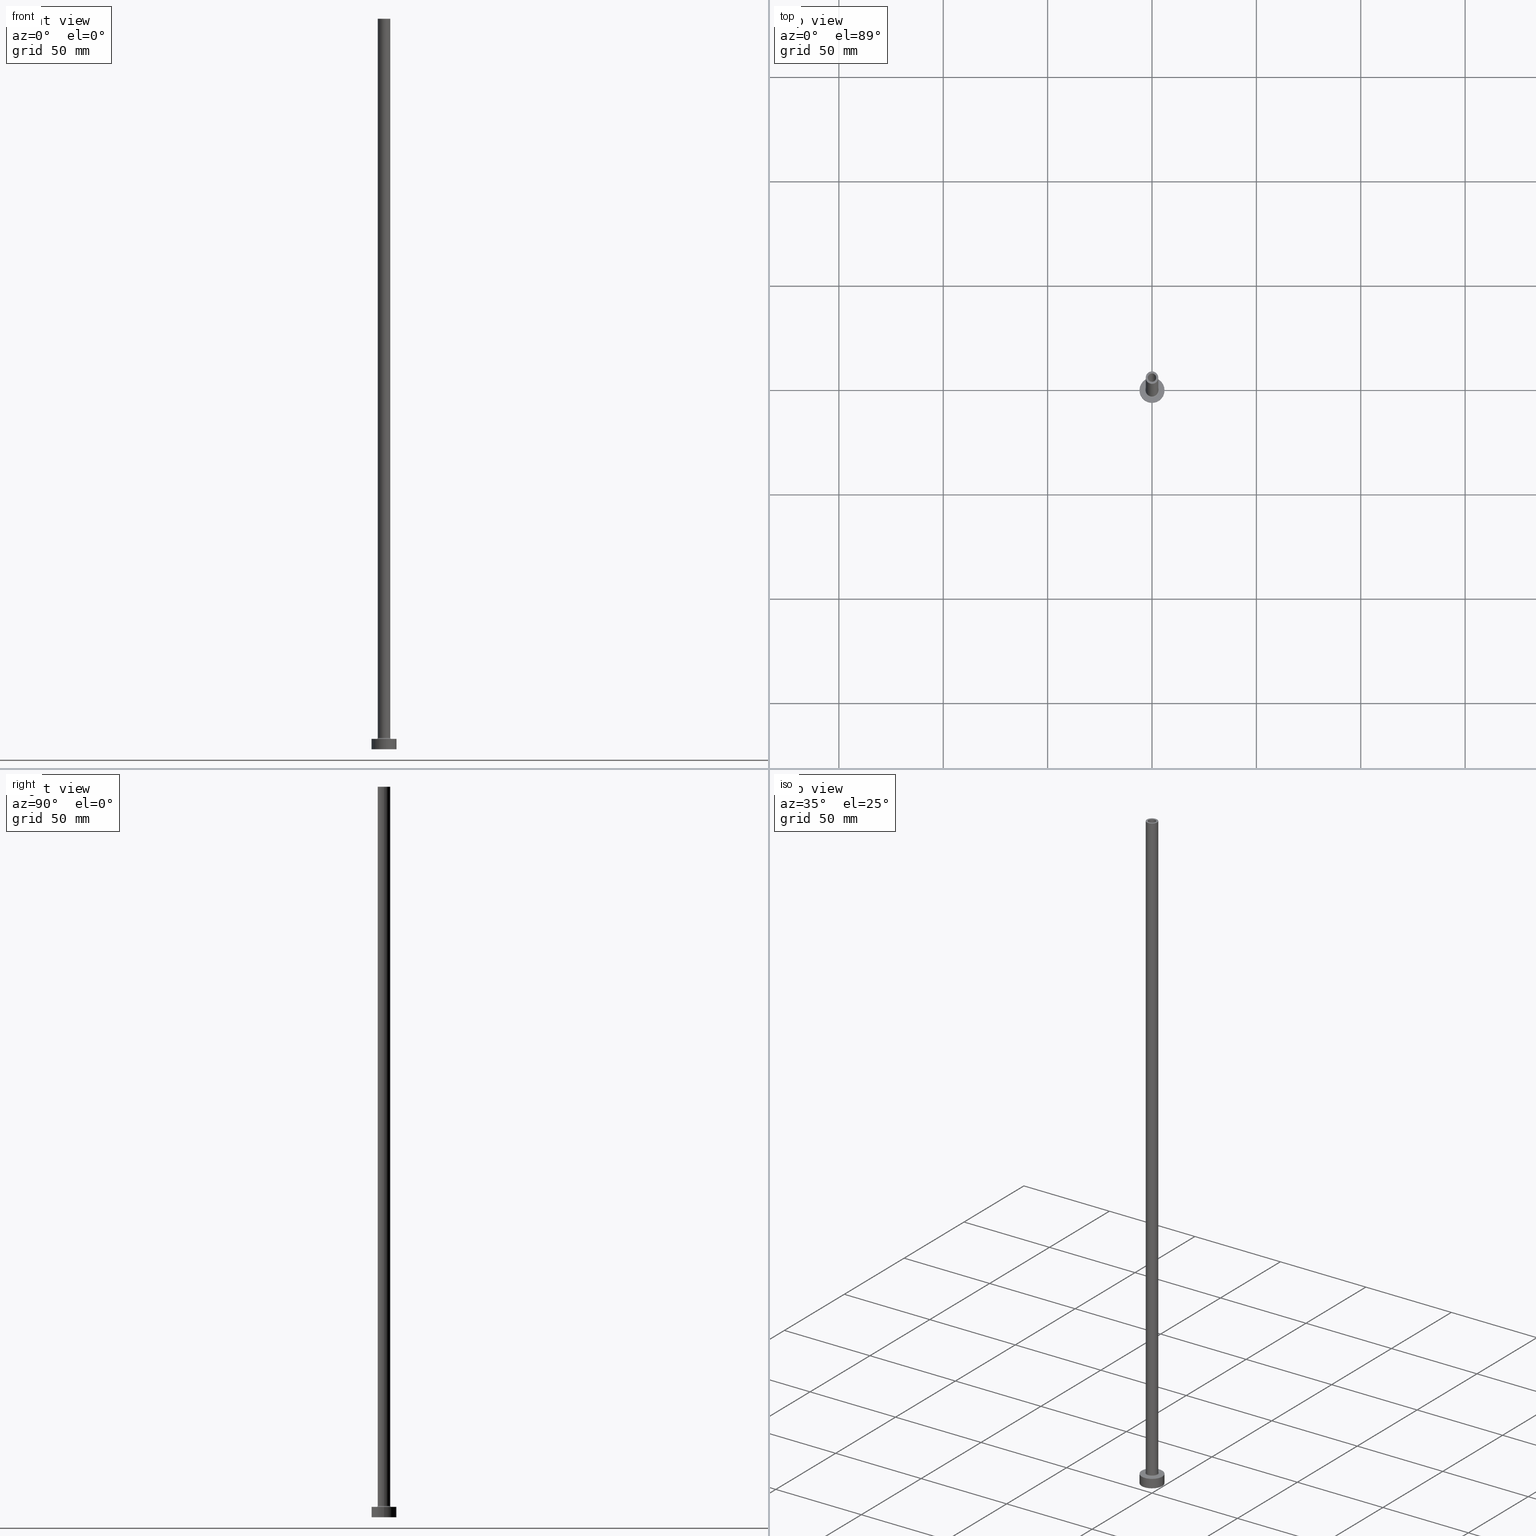
[diagram: canonical four-view strip — front | top / right | iso, engineering-drawing reading convention]
A machine part, canonical four-view strip (front | top / right | iso — engineering-drawing reading convention). The complete STEP part file that produces these views, byte-faithful:
ISO-10303-21;
HEADER;
FILE_DESCRIPTION (( 'STEP AP203' ),
    '1' );
FILE_NAME ('a9fa.STEP',
    '2023-02-13T17:44:10',
    ( '' ),
    ( '' ),
    'SwSTEP 2.0',
    'SolidWorks 2019',
    '' );
FILE_SCHEMA (( 'CONFIG_CONTROL_DESIGN' ));
ENDSEC;

DATA;
#1 = EDGE_LOOP ( 'NONE', ( #436, #14 ) ) ;
#2 = FACE_BOUND ( 'NONE', #57, .T. ) ;
#3 = EDGE_CURVE ( 'NONE', #217, #443, #50, .T. ) ;
#4 = CIRCLE ( 'NONE', #123, 2.000000000000000000 ) ;
#5 = CARTESIAN_POINT ( 'NONE',  ( 0.000000000000000000, 0.000000000000000000, 350.0000000000000000 ) ) ;
#6 = LOCAL_TIME ( 18, 44, 10.00000000000000000, #133 ) ;
#7 = ORIENTED_EDGE ( 'NONE', *, *, #93, .F. ) ;
#8 = CARTESIAN_POINT ( 'NONE',  ( -2.149999999999999911, 0.000000000000000000, 305.0000000000000000 ) ) ;
#9 = ORIENTED_EDGE ( 'NONE', *, *, #3, .T. ) ;
#10 = AXIS2_PLACEMENT_3D ( 'NONE', #308, #169, #26 ) ;
#11 = DATE_AND_TIME ( #194, #6 ) ;
#12 = CARTESIAN_POINT ( 'NONE',  ( 0.000000000000000000, 0.000000000000000000, 0.000000000000000000 ) ) ;
#13 = DIRECTION ( 'NONE',  ( 0.000000000000000000, 0.000000000000000000, -1.000000000000000000 ) ) ;
#14 = ORIENTED_EDGE ( 'NONE', *, *, #435, .F. ) ;
#15 = DIRECTION ( 'NONE',  ( 1.000000000000000000, 0.000000000000000000, 0.000000000000000000 ) ) ;
#16 = PERSON_AND_ORGANIZATION_ROLE ( 'creator' ) ;
#17 = CARTESIAN_POINT ( 'NONE',  ( 0.000000000000000000, 0.000000000000000000, 311.0811183182043465 ) ) ;
#18 = EDGE_CURVE ( 'NONE', #304, #287, #19, .T. ) ;
#19 = CIRCLE ( 'NONE', #143, 3.500000000000000444 ) ;
#20 = APPROVAL_ROLE ( '' ) ;
#21 = APPROVAL_PERSON_ORGANIZATION ( #410, #427, #20 ) ;
#22 = DIRECTION ( 'NONE',  ( 0.000000000000000000, 0.000000000000000000, -1.000000000000000000 ) ) ;
#23 = CC_DESIGN_PERSON_AND_ORGANIZATION_ASSIGNMENT ( #236, #417, ( #84 ) ) ;
#24 = SHAPE_DEFINITION_REPRESENTATION ( #141, #85 ) ;
#25 = FACE_OUTER_BOUND ( 'NONE', #297, .T. ) ;
#26 = DIRECTION ( 'NONE',  ( -1.000000000000000000, 0.000000000000000000, 0.000000000000000000 ) ) ;
#27 = AXIS2_PLACEMENT_3D ( 'NONE', #263, #306, #272 ) ;
#28 = CC_DESIGN_PERSON_AND_ORGANIZATION_ASSIGNMENT ( #157, #16, ( #360 ) ) ;
#29 = CIRCLE ( 'NONE', #199, 2.149999999999999911 ) ;
#30 = CC_DESIGN_SECURITY_CLASSIFICATION ( #348, ( #84 ) ) ;
#31 = DIRECTION ( 'NONE',  ( -0.000000000000000000, -0.000000000000000000, -1.000000000000000000 ) ) ;
#32 = APPROVAL_STATUS ( 'not_yet_approved' ) ;
#33 = DIRECTION ( 'NONE',  ( 1.000000000000000000, 0.000000000000000000, -0.000000000000000000 ) ) ;
#34 = ORIENTED_EDGE ( 'NONE', *, *, #391, .T. ) ;
#35 = APPROVAL_ROLE ( '' ) ;
#36 = CARTESIAN_POINT ( 'NONE',  ( 0.000000000000000000, 0.000000000000000000, 350.0000000000000000 ) ) ;
#37 = EDGE_CURVE ( 'NONE', #300, #426, #274, .T. ) ;
#38 = VERTEX_POINT ( 'NONE', #222 ) ;
#39 = APPLICATION_CONTEXT ( 'configuration controlled 3d designs of mechanical parts and assemblies' ) ;
#40 = VECTOR ( 'NONE', #418, 1000.000000000000000 ) ;
#41 = FACE_OUTER_BOUND ( 'NONE', #292, .T. ) ;
#42 = DIRECTION ( 'NONE',  ( 0.000000000000000000, 0.000000000000000000, -1.000000000000000000 ) ) ;
#43 = DIRECTION ( 'NONE',  ( 0.000000000000000000, 0.000000000000000000, 1.000000000000000000 ) ) ;
#44 = ORIENTED_EDGE ( 'NONE', *, *, #51, .T. ) ;
#45 = ORIENTED_EDGE ( 'NONE', *, *, #18, .F. ) ;
#46 = DIRECTION ( 'NONE',  ( 1.000000000000000000, 0.000000000000000000, 0.000000000000000000 ) ) ;
#47 = AXIS2_PLACEMENT_3D ( 'NONE', #424, #43, #207 ) ;
#48 = CC_DESIGN_APPROVAL ( #75, ( #348 ) ) ;
#49 = VERTEX_POINT ( 'NONE', #88 ) ;
#50 = LINE ( 'NONE', #401, #154 ) ;
#51 = EDGE_CURVE ( 'NONE', #216, #425, #120, .T. ) ;
#52 = CARTESIAN_POINT ( 'NONE',  ( 2.149999999999999911, 2.632990618166809235E-16, 311.0811183182043465 ) ) ;
#53 = VERTEX_POINT ( 'NONE', #185 ) ;
#54 = APPROVAL_ROLE ( '' ) ;
#55 = AXIS2_PLACEMENT_3D ( 'NONE', #442, #371, #187 ) ;
#56 = ORIENTED_EDGE ( 'NONE', *, *, #246, .F. ) ;
#57 = EDGE_LOOP ( 'NONE', ( #61, #437 ) ) ;
#58 = APPROVAL_STATUS ( 'not_yet_approved' ) ;
#59 = EDGE_CURVE ( 'NONE', #38, #287, #415, .T. ) ;
#60 = LINE ( 'NONE', #433, #64 ) ;
#61 = ORIENTED_EDGE ( 'NONE', *, *, #405, .F. ) ;
#62 = CYLINDRICAL_SURFACE ( 'NONE', #409, 2.149999999999999911 ) ;
#63 = DATE_AND_TIME ( #380, #368 ) ;
#64 = VECTOR ( 'NONE', #403, 1000.000000000000000 ) ;
#65 = EDGE_CURVE ( 'NONE', #233, #426, #125, .T. ) ;
#66 = UNCERTAINTY_MEASURE_WITH_UNIT (LENGTH_MEASURE( 1.000000000000000082E-05 ), #458, 'distance_accuracy_value', 'NONE');
#67 = DIRECTION ( 'NONE',  ( -0.000000000000000000, -0.000000000000000000, -1.000000000000000000 ) ) ;
#68 = DATE_TIME_ROLE ( 'classification_date' ) ;
#69 = AXIS2_PLACEMENT_3D ( 'NONE', #249, #394, #327 ) ;
#70 = LOCAL_TIME ( 18, 44, 10.00000000000000000, #453 ) ;
#71 = CARTESIAN_POINT ( 'NONE',  ( 0.000000000000000000, 0.000000000000000000, 5.000000000000000000 ) ) ;
#72 = DIRECTION ( 'NONE',  ( 1.000000000000000000, 0.000000000000000000, 0.000000000000000000 ) ) ;
#73 = CARTESIAN_POINT ( 'NONE',  ( 0.000000000000000000, 0.000000000000000000, 350.0000000000000000 ) ) ;
#74 = FACE_OUTER_BOUND ( 'NONE', #248, .T. ) ;
#75 = APPROVAL ( #32, 'NEUR�EN�' ) ;
#76 = FACE_OUTER_BOUND ( 'NONE', #228, .T. ) ;
#77 = AXIS2_PLACEMENT_3D ( 'NONE', #339, #334, #372 ) ;
#78 = CIRCLE ( 'NONE', #337, 6.000000000000000888 ) ;
#79 = DIRECTION ( 'NONE',  ( -1.000000000000000000, 0.000000000000000000, 0.000000000000000000 ) ) ;
#80 = VERTEX_POINT ( 'NONE', #336 ) ;
#81 = DIRECTION ( 'NONE',  ( 0.000000000000000000, 0.000000000000000000, 1.000000000000000000 ) ) ;
#82 = ORIENTED_EDGE ( 'NONE', *, *, #104, .T. ) ;
#83 = ORIENTED_EDGE ( 'NONE', *, *, #135, .T. ) ;
#84 = PRODUCT_DEFINITION_FORMATION_WITH_SPECIFIED_SOURCE ( 'LIBOVOLN�', '', #457, .NOT_KNOWN. ) ;
#85 = ADVANCED_BREP_SHAPE_REPRESENTATION ( 'a9fa', ( #283, #423 ), #105 ) ;
#86 = CYLINDRICAL_SURFACE ( 'NONE', #98, 3.000000000000000444 ) ;
#87 = APPLICATION_CONTEXT ( 'configuration controlled 3d designs of mechanical parts and assemblies' ) ;
#88 = CARTESIAN_POINT ( 'NONE',  ( -6.000000000000000888, 0.000000000000000000, 0.000000000000000000 ) ) ;
#89 = LINE ( 'NONE', #373, #295 ) ;
#90 = ORIENTED_EDGE ( 'NONE', *, *, #435, .T. ) ;
#91 = CIRCLE ( 'NONE', #317, 2.000000000000000000 ) ;
#92 = DIRECTION ( 'NONE',  ( 0.000000000000000000, 0.000000000000000000, -1.000000000000000000 ) ) ;
#93 = EDGE_CURVE ( 'NONE', #396, #216, #315, .T. ) ;
#94 = CARTESIAN_POINT ( 'NONE',  ( 3.500000000000000444, 0.000000000000000000, 5.500000000000005329 ) ) ;
#95 = ORIENTED_EDGE ( 'NONE', *, *, #65, .T. ) ;
#96 = ADVANCED_FACE ( 'NONE', ( #25 ), #115, .F. ) ;
#97 = DIRECTION ( 'NONE',  ( -1.000000000000000000, 0.000000000000000000, 0.000000000000000000 ) ) ;
#98 = AXIS2_PLACEMENT_3D ( 'NONE', #36, #31, #318 ) ;
#99 = CARTESIAN_POINT ( 'NONE',  ( 0.000000000000000000, 0.000000000000000000, 5.500000000000005329 ) ) ;
#100 = PRODUCT_RELATED_PRODUCT_CATEGORY ( 'detail', '', ( #457 ) ) ;
#101 = CARTESIAN_POINT ( 'NONE',  ( -6.000000000000000888, 0.000000000000000000, 5.000000000000000000 ) ) ;
#102 = CARTESIAN_POINT ( 'NONE',  ( -2.000000000000000000, 0.000000000000000000, 305.0000000000000000 ) ) ;
#103 = DIRECTION ( 'NONE',  ( 0.000000000000000000, 0.000000000000000000, 1.000000000000000000 ) ) ;
#104 = EDGE_CURVE ( 'NONE', #38, #261, #153, .T. ) ;
#105 =( GEOMETRIC_REPRESENTATION_CONTEXT ( 3 ) GLOBAL_UNCERTAINTY_ASSIGNED_CONTEXT ( ( #66 ) ) GLOBAL_UNIT_ASSIGNED_CONTEXT ( ( #458, #218, #298 ) ) REPRESENTATION_CONTEXT ( 'NONE', 'WORKASPACE' ) );
#106 = CARTESIAN_POINT ( 'NONE',  ( 2.149999999999999911, 2.632990618166809235E-16, 0.000000000000000000 ) ) ;
#107 = PLANE ( 'NONE',  #47 ) ;
#108 = ORIENTED_EDGE ( 'NONE', *, *, #121, .F. ) ;
#109 = DIRECTION ( 'NONE',  ( 0.000000000000000000, 0.000000000000000000, 1.000000000000000000 ) ) ;
#110 = ORIENTED_EDGE ( 'NONE', *, *, #93, .T. ) ;
#111 = EDGE_LOOP ( 'NONE', ( #149, #7, #404, #250 ) ) ;
#112 = APPROVAL ( #58, 'NEUR�EN�' ) ;
#113 = DIRECTION ( 'NONE',  ( 1.000000000000000000, 0.000000000000000000, 0.000000000000000000 ) ) ;
#114 = ORIENTED_EDGE ( 'NONE', *, *, #129, .T. ) ;
#115 = TOROIDAL_SURFACE ( 'NONE', #294, 3.500000000000000444, 0.5000000000000000000 ) ;
#116 = AXIS2_PLACEMENT_3D ( 'NONE', #71, #299, #180 ) ;
#117 = DIRECTION ( 'NONE',  ( 1.000000000000000000, 0.000000000000000000, 0.000000000000000000 ) ) ;
#118 = FACE_OUTER_BOUND ( 'NONE', #255, .T. ) ;
#119 = DIRECTION ( 'NONE',  ( 0.000000000000000000, 0.000000000000000000, -1.000000000000000000 ) ) ;
#120 = LINE ( 'NONE', #370, #430 ) ;
#121 = EDGE_CURVE ( 'NONE', #216, #396, #166, .T. ) ;
#122 = DIRECTION ( 'NONE',  ( 1.000000000000000000, 0.000000000000000000, 0.000000000000000000 ) ) ;
#123 = AXIS2_PLACEMENT_3D ( 'NONE', #178, #109, #215 ) ;
#124 = CARTESIAN_POINT ( 'NONE',  ( 0.000000000000000000, 0.000000000000000000, 0.000000000000000000 ) ) ;
#125 = LINE ( 'NONE', #52, #358 ) ;
#126 = ORIENTED_EDGE ( 'NONE', *, *, #399, .T. ) ;
#127 = CYLINDRICAL_SURFACE ( 'NONE', #55, 6.000000000000000888 ) ;
#128 = DIRECTION ( 'NONE',  ( -0.000000000000000000, -0.000000000000000000, -1.000000000000000000 ) ) ;
#129 = EDGE_CURVE ( 'NONE', #261, #38, #381, .T. ) ;
#130 = DIRECTION ( 'NONE',  ( -1.000000000000000000, 0.000000000000000000, 0.000000000000000000 ) ) ;
#131 = CC_DESIGN_APPROVAL ( #427, ( #84 ) ) ;
#132 = DIRECTION ( 'NONE',  ( 0.000000000000000000, 0.000000000000000000, 1.000000000000000000 ) ) ;
#133 = COORDINATED_UNIVERSAL_TIME_OFFSET ( 1, 0, .AHEAD. ) ;
#134 = LINE ( 'NONE', #101, #40 ) ;
#135 = EDGE_CURVE ( 'NONE', #80, #217, #4, .T. ) ;
#136 = APPROVAL_PERSON_ORGANIZATION ( #346, #112, #54 ) ;
#137 = CARTESIAN_POINT ( 'NONE',  ( -3.500000000000000444, 4.286263797015737088E-16, 5.000000000000002665 ) ) ;
#138 = CALENDAR_DATE ( 2023, 13, 2 ) ;
#139 = DIRECTION ( 'NONE',  ( 1.000000000000000000, 0.000000000000000000, 0.000000000000000000 ) ) ;
#140 = ADVANCED_FACE ( 'NONE', ( #359, #76 ), #364, .T. ) ;
#141 = PRODUCT_DEFINITION_SHAPE ( 'NONE', 'NONE',  #360 ) ;
#142 = PERSON_AND_ORGANIZATION ( #356, #382 ) ;
#143 = AXIS2_PLACEMENT_3D ( 'NONE', #342, #128, #191 ) ;
#144 = APPROVAL_PERSON_ORGANIZATION ( #239, #75, #35 ) ;
#145 = ORIENTED_EDGE ( 'NONE', *, *, #189, .T. ) ;
#146 = ORIENTED_EDGE ( 'NONE', *, *, #121, .T. ) ;
#147 = ADVANCED_FACE ( 'NONE', ( #2, #41 ), #107, .T. ) ;
#148 = AXIS2_PLACEMENT_3D ( 'NONE', #208, #355, #284 ) ;
#149 = ORIENTED_EDGE ( 'NONE', *, *, #51, .F. ) ;
#150 = ADVANCED_FACE ( 'NONE', ( #244 ), #177, .F. ) ;
#151 = CARTESIAN_POINT ( 'NONE',  ( -6.000000000000000888, 0.000000000000000000, 5.000000000000000000 ) ) ;
#152 = ORIENTED_EDGE ( 'NONE', *, *, #374, .F. ) ;
#153 = CIRCLE ( 'NONE', #265, 3.000000000000000444 ) ;
#154 = VECTOR ( 'NONE', #92, 1000.000000000000000 ) ;
#155 = CIRCLE ( 'NONE', #432, 6.000000000000000888 ) ;
#156 = DIRECTION ( 'NONE',  ( 1.000000000000000000, 0.000000000000000000, 0.000000000000000000 ) ) ;
#157 = PERSON_AND_ORGANIZATION ( #356, #382 ) ;
#158 = ADVANCED_FACE ( 'NONE', ( #74 ), #362, .F. ) ;
#159 = FACE_OUTER_BOUND ( 'NONE', #363, .T. ) ;
#160 = DIRECTION ( 'NONE',  ( -0.000000000000000000, -0.000000000000000000, -1.000000000000000000 ) ) ;
#161 = ORIENTED_EDGE ( 'NONE', *, *, #374, .T. ) ;
#162 = CC_DESIGN_PERSON_AND_ORGANIZATION_ASSIGNMENT ( #455, #282, ( #348 ) ) ;
#163 = CARTESIAN_POINT ( 'NONE',  ( 0.000000000000000000, 0.000000000000000000, 305.0000000000000000 ) ) ;
#164 = COORDINATED_UNIVERSAL_TIME_OFFSET ( 1, 0, .AHEAD. ) ;
#165 = CARTESIAN_POINT ( 'NONE',  ( 0.000000000000000000, 0.000000000000000000, 311.0811183182043465 ) ) ;
#166 = CIRCLE ( 'NONE', #210, 6.000000000000000888 ) ;
#167 = CIRCLE ( 'NONE', #181, 0.5000000000000004441 ) ;
#168 = LINE ( 'NONE', #314, #226 ) ;
#169 = DIRECTION ( 'NONE',  ( -0.000000000000000000, -0.000000000000000000, -1.000000000000000000 ) ) ;
#170 = AXIS2_PLACEMENT_3D ( 'NONE', #73, #366, #258 ) ;
#171 = DATE_AND_TIME ( #138, #70 ) ;
#172 = DIRECTION ( 'NONE',  ( 0.000000000000000000, 0.000000000000000000, 1.000000000000000000 ) ) ;
#173 = DIRECTION ( 'NONE',  ( 0.000000000000000000, 0.000000000000000000, 1.000000000000000000 ) ) ;
#174 = ADVANCED_FACE ( 'NONE', ( #434 ), #127, .T. ) ;
#175 = ORIENTED_EDGE ( 'NONE', *, *, #405, .T. ) ;
#176 = CIRCLE ( 'NONE', #235, 2.149999999999999911 ) ;
#177 = CYLINDRICAL_SURFACE ( 'NONE', #421, 2.000000000000000000 ) ;
#178 = CARTESIAN_POINT ( 'NONE',  ( 0.000000000000000000, 0.000000000000000000, 350.0000000000000000 ) ) ;
#179 = ORIENTED_EDGE ( 'NONE', *, *, #341, .F. ) ;
#180 = DIRECTION ( 'NONE',  ( 1.000000000000000000, 0.000000000000000000, 0.000000000000000000 ) ) ;
#181 = AXIS2_PLACEMENT_3D ( 'NONE', #94, #229, #378 ) ;
#182 = CARTESIAN_POINT ( 'NONE',  ( 0.000000000000000000, 0.000000000000000000, 0.000000000000000000 ) ) ;
#183 = CARTESIAN_POINT ( 'NONE',  ( 0.000000000000000000, 0.000000000000000000, 305.0000000000000000 ) ) ;
#184 = DIRECTION ( 'NONE',  ( 1.000000000000000000, 0.000000000000000000, 0.000000000000000000 ) ) ;
#185 = CARTESIAN_POINT ( 'NONE',  ( 2.000000000000000000, 2.449293598294705921E-16, 305.0000000000000000 ) ) ;
#186 = EDGE_LOOP ( 'NONE', ( #179, #460, #407, #82 ) ) ;
#187 = DIRECTION ( 'NONE',  ( -1.000000000000000000, 0.000000000000000000, 0.000000000000000000 ) ) ;
#188 = ORIENTED_EDGE ( 'NONE', *, *, #198, .F. ) ;
#189 = EDGE_CURVE ( 'NONE', #390, #300, #89, .T. ) ;
#190 = LOCAL_TIME ( 18, 44, 10.00000000000000000, #203 ) ;
#191 = DIRECTION ( 'NONE',  ( 1.000000000000000000, 0.000000000000000000, 0.000000000000000000 ) ) ;
#192 = EDGE_LOOP ( 'NONE', ( #56, #291, #114, #367 ) ) ;
#193 = ORIENTED_EDGE ( 'NONE', *, *, #293, .T. ) ;
#194 = CALENDAR_DATE ( 2023, 13, 2 ) ;
#195 = DIRECTION ( 'NONE',  ( 1.000000000000000000, 0.000000000000000000, 0.000000000000000000 ) ) ;
#196 = DIRECTION ( 'NONE',  ( 1.000000000000000000, 0.000000000000000000, 0.000000000000000000 ) ) ;
#197 = CYLINDRICAL_SURFACE ( 'NONE', #213, 3.000000000000000444 ) ;
#198 = EDGE_CURVE ( 'NONE', #49, #425, #155, .T. ) ;
#199 = AXIS2_PLACEMENT_3D ( 'NONE', #183, #319, #332 ) ;
#200 = SECURITY_CLASSIFICATION_LEVEL ( 'unclassified' ) ;
#201 = CARTESIAN_POINT ( 'NONE',  ( 3.500000000000000444, 0.000000000000000000, 5.000000000000002665 ) ) ;
#202 = DESIGN_CONTEXT ( 'detailed design', #87, 'design' ) ;
#203 = COORDINATED_UNIVERSAL_TIME_OFFSET ( 1, 0, .AHEAD. ) ;
#204 = EDGE_CURVE ( 'NONE', #426, #300, #459, .T. ) ;
#205 = DIRECTION ( 'NONE',  ( -0.000000000000000000, -0.000000000000000000, -1.000000000000000000 ) ) ;
#206 = DIRECTION ( 'NONE',  ( 0.000000000000000000, 0.000000000000000000, 1.000000000000000000 ) ) ;
#207 = DIRECTION ( 'NONE',  ( 1.000000000000000000, 0.000000000000000000, -0.000000000000000000 ) ) ;
#208 = CARTESIAN_POINT ( 'NONE',  ( 0.000000000000000000, 0.000000000000000000, 305.0000000000000000 ) ) ;
#209 = ORIENTED_EDGE ( 'NONE', *, *, #129, .F. ) ;
#210 = AXIS2_PLACEMENT_3D ( 'NONE', #431, #81, #357 ) ;
#211 = ORIENTED_EDGE ( 'NONE', *, *, #333, .F. ) ;
#212 = CIRCLE ( 'NONE', #329, 2.000000000000000000 ) ;
#213 = AXIS2_PLACEMENT_3D ( 'NONE', #232, #205, #449 ) ;
#214 = ORIENTED_EDGE ( 'NONE', *, *, #37, .T. ) ;
#215 = DIRECTION ( 'NONE',  ( 1.000000000000000000, 0.000000000000000000, 0.000000000000000000 ) ) ;
#216 = VERTEX_POINT ( 'NONE', #400 ) ;
#217 = VERTEX_POINT ( 'NONE', #338 ) ;
#218 =( NAMED_UNIT ( * ) PLANE_ANGLE_UNIT ( ) SI_UNIT ( $, .RADIAN. ) );
#219 = EDGE_LOOP ( 'NONE', ( #440, #267 ) ) ;
#220 = ORIENTED_EDGE ( 'NONE', *, *, #399, .F. ) ;
#221 = VECTOR ( 'NONE', #456, 1000.000000000000000 ) ;
#222 = CARTESIAN_POINT ( 'NONE',  ( -3.000000000000000444, 0.000000000000000000, 5.500000000000005329 ) ) ;
#223 = APPLICATION_PROTOCOL_DEFINITION ( 'international standard', 'config_control_design', 1994, #87 ) ;
#224 = ORIENTED_EDGE ( 'NONE', *, *, #3, .F. ) ;
#225 = ORIENTED_EDGE ( 'NONE', *, *, #391, .F. ) ;
#226 = VECTOR ( 'NONE', #67, 1000.000000000000000 ) ;
#227 = CYLINDRICAL_SURFACE ( 'NONE', #10, 6.000000000000000888 ) ;
#228 = EDGE_LOOP ( 'NONE', ( #110, #146 ) ) ;
#229 = DIRECTION ( 'NONE',  ( 0.000000000000000000, -1.000000000000000000, 0.000000000000000000 ) ) ;
#230 = CALENDAR_DATE ( 2023, 13, 2 ) ;
#231 = ADVANCED_FACE ( 'NONE', ( #159 ), #227, .T. ) ;
#232 = CARTESIAN_POINT ( 'NONE',  ( 0.000000000000000000, 0.000000000000000000, 350.0000000000000000 ) ) ;
#233 = VERTEX_POINT ( 'NONE', #446 ) ;
#234 = DIRECTION ( 'NONE',  ( 0.000000000000000000, 0.000000000000000000, 1.000000000000000000 ) ) ;
#235 = AXIS2_PLACEMENT_3D ( 'NONE', #454, #206, #139 ) ;
#236 = PERSON_AND_ORGANIZATION ( #356, #382 ) ;
#237 = CARTESIAN_POINT ( 'NONE',  ( 0.000000000000000000, 0.000000000000000000, 350.0000000000000000 ) ) ;
#238 = DIRECTION ( 'NONE',  ( 1.000000000000000000, 0.000000000000000000, 0.000000000000000000 ) ) ;
#239 = PERSON_AND_ORGANIZATION ( #356, #382 ) ;
#240 = CARTESIAN_POINT ( 'NONE',  ( 3.000000000000000444, 3.673940397442060361E-16, 350.0000000000000000 ) ) ;
#241 = CIRCLE ( 'NONE', #416, 3.000000000000000444 ) ;
#242 = CALENDAR_DATE ( 2023, 13, 2 ) ;
#243 = PLANE ( 'NONE',  #148 ) ;
#244 = FACE_OUTER_BOUND ( 'NONE', #345, .T. ) ;
#245 = ORIENTED_EDGE ( 'NONE', *, *, #369, .T. ) ;
#246 = EDGE_CURVE ( 'NONE', #445, #325, #251, .T. ) ;
#247 = CARTESIAN_POINT ( 'NONE',  ( 0.000000000000000000, 0.000000000000000000, 5.500000000000005329 ) ) ;
#248 = EDGE_LOOP ( 'NONE', ( #225, #83, #9, #397 ) ) ;
#249 = CARTESIAN_POINT ( 'NONE',  ( 0.000000000000000000, 0.000000000000000000, 5.000000000000000000 ) ) ;
#250 = ORIENTED_EDGE ( 'NONE', *, *, #198, .T. ) ;
#251 = CIRCLE ( 'NONE', #286, 3.000000000000000444 ) ;
#252 = EDGE_CURVE ( 'NONE', #396, #49, #134, .T. ) ;
#253 = PLANE ( 'NONE',  #361 ) ;
#254 = DIRECTION ( 'NONE',  ( 1.000000000000000000, 0.000000000000000000, 0.000000000000000000 ) ) ;
#255 = EDGE_LOOP ( 'NONE', ( #188, #220 ) ) ;
#256 = EDGE_LOOP ( 'NONE', ( #161, #193 ) ) ;
#257 = DIRECTION ( 'NONE',  ( -0.000000000000000000, -0.000000000000000000, -1.000000000000000000 ) ) ;
#258 = DIRECTION ( 'NONE',  ( 1.000000000000000000, 0.000000000000000000, 0.000000000000000000 ) ) ;
#259 = AXIS2_PLACEMENT_3D ( 'NONE', #99, #269, #238 ) ;
#260 = ORIENTED_EDGE ( 'NONE', *, *, #333, .T. ) ;
#261 = VERTEX_POINT ( 'NONE', #384 ) ;
#262 = CC_DESIGN_DATE_AND_TIME_ASSIGNMENT ( #277, #68, ( #348 ) ) ;
#263 = CARTESIAN_POINT ( 'NONE',  ( 0.000000000000000000, 0.000000000000000000, 5.000000000000000000 ) ) ;
#264 = CARTESIAN_POINT ( 'NONE',  ( 0.000000000000000000, 0.000000000000000000, 0.000000000000000000 ) ) ;
#265 = AXIS2_PLACEMENT_3D ( 'NONE', #324, #103, #113 ) ;
#266 = LOCAL_TIME ( 18, 44, 10.00000000000000000, #164 ) ;
#267 = ORIENTED_EDGE ( 'NONE', *, *, #204, .F. ) ;
#268 = DATE_TIME_ROLE ( 'creation_date' ) ;
#269 = DIRECTION ( 'NONE',  ( 0.000000000000000000, 0.000000000000000000, 1.000000000000000000 ) ) ;
#270 = PERSON_AND_ORGANIZATION_ROLE ( 'design_owner' ) ;
#271 = DIRECTION ( 'NONE',  ( 0.000000000000000000, 0.000000000000000000, -1.000000000000000000 ) ) ;
#272 = DIRECTION ( 'NONE',  ( 1.000000000000000000, 0.000000000000000000, 0.000000000000000000 ) ) ;
#273 = ADVANCED_FACE ( 'NONE', ( #316 ), #197, .T. ) ;
#274 = CIRCLE ( 'NONE', #347, 2.149999999999999911 ) ;
#275 = CARTESIAN_POINT ( 'NONE',  ( -3.000000000000000444, 0.000000000000000000, 350.0000000000000000 ) ) ;
#276 = AXIS2_PLACEMENT_3D ( 'NONE', #12, #257, #184 ) ;
#277 = DATE_AND_TIME ( #242, #190 ) ;
#278 = CARTESIAN_POINT ( 'NONE',  ( 0.000000000000000000, 0.000000000000000000, 350.0000000000000000 ) ) ;
#279 = PERSON_AND_ORGANIZATION_ROLE ( 'design_supplier' ) ;
#280 = CARTESIAN_POINT ( 'NONE',  ( 2.000000000000000000, 2.449293598294705921E-16, 350.0000000000000000 ) ) ;
#281 = DIRECTION ( 'NONE',  ( 0.000000000000000000, 0.000000000000000000, -1.000000000000000000 ) ) ;
#282 = PERSON_AND_ORGANIZATION_ROLE ( 'classification_officer' ) ;
#283 = MANIFOLD_SOLID_BREP ( 'Odebrat vysunut�m4', #350 ) ;
#284 = DIRECTION ( 'NONE',  ( 1.000000000000000000, 0.000000000000000000, -0.000000000000000000 ) ) ;
#285 = CARTESIAN_POINT ( 'NONE',  ( 0.000000000000000000, 0.000000000000000000, 5.500000000000005329 ) ) ;
#286 = AXIS2_PLACEMENT_3D ( 'NONE', #237, #452, #195 ) ;
#287 = VERTEX_POINT ( 'NONE', #137 ) ;
#288 = COORDINATED_UNIVERSAL_TIME_OFFSET ( 1, 0, .AHEAD. ) ;
#289 = ADVANCED_FACE ( 'NONE', ( #344 ), #402, .F. ) ;
#290 = EDGE_LOOP ( 'NONE', ( #428, #335, #45, #211 ) ) ;
#291 = ORIENTED_EDGE ( 'NONE', *, *, #341, .T. ) ;
#292 = EDGE_LOOP ( 'NONE', ( #323, #340 ) ) ;
#293 = EDGE_CURVE ( 'NONE', #53, #443, #91, .T. ) ;
#294 = AXIS2_PLACEMENT_3D ( 'NONE', #247, #392, #72 ) ;
#295 = VECTOR ( 'NONE', #119, 1000.000000000000000 ) ;
#296 = FACE_OUTER_BOUND ( 'NONE', #1, .T. ) ;
#297 = EDGE_LOOP ( 'NONE', ( #406, #209, #260, #365 ) ) ;
#298 =( NAMED_UNIT ( * ) SI_UNIT ( $, .STERADIAN. ) SOLID_ANGLE_UNIT ( ) );
#299 = DIRECTION ( 'NONE',  ( -0.000000000000000000, -0.000000000000000000, -1.000000000000000000 ) ) ;
#300 = VERTEX_POINT ( 'NONE', #451 ) ;
#301 = ORIENTED_EDGE ( 'NONE', *, *, #189, .F. ) ;
#302 = ADVANCED_FACE ( 'NONE', ( #414 ), #62, .F. ) ;
#303 = AXIS2_PLACEMENT_3D ( 'NONE', #165, #22, #130 ) ;
#304 = VERTEX_POINT ( 'NONE', #201 ) ;
#305 = PERSON_AND_ORGANIZATION ( #356, #382 ) ;
#306 = DIRECTION ( 'NONE',  ( 0.000000000000000000, 0.000000000000000000, 1.000000000000000000 ) ) ;
#307 = EDGE_LOOP ( 'NONE', ( #245, #95, #310, #301 ) ) ;
#308 = CARTESIAN_POINT ( 'NONE',  ( 0.000000000000000000, 0.000000000000000000, 5.000000000000000000 ) ) ;
#309 = ADVANCED_FACE ( 'NONE', ( #385 ), #313, .F. ) ;
#310 = ORIENTED_EDGE ( 'NONE', *, *, #204, .T. ) ;
#311 = DATE_AND_TIME ( #230, #266 ) ;
#312 = AXIS2_PLACEMENT_3D ( 'NONE', #285, #321, #117 ) ;
#313 = CYLINDRICAL_SURFACE ( 'NONE', #303, 2.149999999999999911 ) ;
#314 = CARTESIAN_POINT ( 'NONE',  ( -3.000000000000000444, 0.000000000000000000, 350.0000000000000000 ) ) ;
#315 = CIRCLE ( 'NONE', #27, 6.000000000000000888 ) ;
#316 = FACE_OUTER_BOUND ( 'NONE', #192, .T. ) ;
#317 = AXIS2_PLACEMENT_3D ( 'NONE', #163, #234, #15 ) ;
#318 = DIRECTION ( 'NONE',  ( -1.000000000000000000, 0.000000000000000000, 0.000000000000000000 ) ) ;
#319 = DIRECTION ( 'NONE',  ( 0.000000000000000000, 0.000000000000000000, 1.000000000000000000 ) ) ;
#320 = EDGE_CURVE ( 'NONE', #325, #445, #241, .T. ) ;
#321 = DIRECTION ( 'NONE',  ( 0.000000000000000000, 0.000000000000000000, 1.000000000000000000 ) ) ;
#322 = ORIENTED_EDGE ( 'NONE', *, *, #252, .F. ) ;
#323 = ORIENTED_EDGE ( 'NONE', *, *, #320, .T. ) ;
#324 = CARTESIAN_POINT ( 'NONE',  ( 0.000000000000000000, 0.000000000000000000, 5.500000000000005329 ) ) ;
#325 = VERTEX_POINT ( 'NONE', #275 ) ;
#326 = EDGE_CURVE ( 'NONE', #325, #38, #168, .T. ) ;
#327 = DIRECTION ( 'NONE',  ( 1.000000000000000000, 0.000000000000000000, -0.000000000000000000 ) ) ;
#328 = EDGE_LOOP ( 'NONE', ( #447, #376 ) ) ;
#329 = AXIS2_PLACEMENT_3D ( 'NONE', #398, #172, #46 ) ;
#330 = CARTESIAN_POINT ( 'NONE',  ( 6.000000000000000888, 7.347880794884120722E-16, 0.000000000000000000 ) ) ;
#331 = DIRECTION ( 'NONE',  ( -0.000000000000000000, -0.000000000000000000, -1.000000000000000000 ) ) ;
#332 = DIRECTION ( 'NONE',  ( 1.000000000000000000, 0.000000000000000000, 0.000000000000000000 ) ) ;
#333 = EDGE_CURVE ( 'NONE', #261, #304, #167, .T. ) ;
#334 = DIRECTION ( 'NONE',  ( 1.224646799147353207E-16, 1.000000000000000000, -0.000000000000000000 ) ) ;
#335 = ORIENTED_EDGE ( 'NONE', *, *, #59, .T. ) ;
#336 = CARTESIAN_POINT ( 'NONE',  ( 2.000000000000000000, 2.449293598294705921E-16, 350.0000000000000000 ) ) ;
#337 = AXIS2_PLACEMENT_3D ( 'NONE', #419, #438, #122 ) ;
#338 = CARTESIAN_POINT ( 'NONE',  ( -2.000000000000000000, 0.000000000000000000, 350.0000000000000000 ) ) ;
#339 = CARTESIAN_POINT ( 'NONE',  ( -3.500000000000000444, 4.286263797015737088E-16, 5.500000000000005329 ) ) ;
#340 = ORIENTED_EDGE ( 'NONE', *, *, #246, .T. ) ;
#341 = EDGE_CURVE ( 'NONE', #445, #261, #60, .T. ) ;
#342 = CARTESIAN_POINT ( 'NONE',  ( 0.000000000000000000, 0.000000000000000000, 5.000000000000000000 ) ) ;
#343 = APPROVAL_DATE_TIME ( #11, #112 ) ;
#344 = FACE_OUTER_BOUND ( 'NONE', #290, .T. ) ;
#345 = EDGE_LOOP ( 'NONE', ( #175, #34, #152, #224 ) ) ;
#346 = PERSON_AND_ORGANIZATION ( #356, #382 ) ;
#347 = AXIS2_PLACEMENT_3D ( 'NONE', #182, #331, #156 ) ;
#348 = SECURITY_CLASSIFICATION ( '', '', #200 ) ;
#349 = CC_DESIGN_PERSON_AND_ORGANIZATION_ASSIGNMENT ( #142, #279, ( #84 ) ) ;
#350 = CLOSED_SHELL ( 'NONE', ( #150, #309, #289, #273, #231, #174, #140, #461, #413, #147, #96, #302, #448, #158 ) ) ;
#351 = FACE_OUTER_BOUND ( 'NONE', #186, .T. ) ;
#352 = CARTESIAN_POINT ( 'NONE',  ( 0.000000000000000000, 0.000000000000000000, 0.000000000000000000 ) ) ;
#353 = DIRECTION ( 'NONE',  ( -1.000000000000000000, 0.000000000000000000, 0.000000000000000000 ) ) ;
#354 = ORIENTED_EDGE ( 'NONE', *, *, #65, .F. ) ;
#355 = DIRECTION ( 'NONE',  ( 0.000000000000000000, 0.000000000000000000, 1.000000000000000000 ) ) ;
#356 = PERSON ( 'NEUR�EN�', 'NEUR�EN�', 'NEUR�EN�', ('NEUR�EN�'), ('NEUR�EN�'), ('NEUR�EN�') ) ;
#357 = DIRECTION ( 'NONE',  ( 1.000000000000000000, 0.000000000000000000, 0.000000000000000000 ) ) ;
#358 = VECTOR ( 'NONE', #13, 1000.000000000000000 ) ;
#359 = FACE_BOUND ( 'NONE', #328, .T. ) ;
#360 = PRODUCT_DEFINITION ( 'NEZN�M�', '', #84, #202 ) ;
#361 = AXIS2_PLACEMENT_3D ( 'NONE', #352, #173, #33 ) ;
#362 = CYLINDRICAL_SURFACE ( 'NONE', #387, 2.000000000000000000 ) ;
#363 = EDGE_LOOP ( 'NONE', ( #108, #44, #126, #322 ) ) ;
#364 = PLANE ( 'NONE',  #69 ) ;
#365 = ORIENTED_EDGE ( 'NONE', *, *, #383, .F. ) ;
#366 = DIRECTION ( 'NONE',  ( 0.000000000000000000, 0.000000000000000000, 1.000000000000000000 ) ) ;
#367 = ORIENTED_EDGE ( 'NONE', *, *, #326, .F. ) ;
#368 = LOCAL_TIME ( 18, 44, 10.00000000000000000, #288 ) ;
#369 = EDGE_CURVE ( 'NONE', #390, #233, #29, .T. ) ;
#370 = CARTESIAN_POINT ( 'NONE',  ( 6.000000000000000888, 7.347880794884120722E-16, 5.000000000000000000 ) ) ;
#371 = DIRECTION ( 'NONE',  ( -0.000000000000000000, -0.000000000000000000, -1.000000000000000000 ) ) ;
#372 = DIRECTION ( 'NONE',  ( -1.000000000000000000, 1.224646799147354440E-16, 0.000000000000000000 ) ) ;
#373 = CARTESIAN_POINT ( 'NONE',  ( -2.149999999999999911, 0.000000000000000000, 311.0811183182043465 ) ) ;
#374 = EDGE_CURVE ( 'NONE', #443, #53, #212, .T. ) ;
#375 = CIRCLE ( 'NONE', #170, 2.000000000000000000 ) ;
#376 = ORIENTED_EDGE ( 'NONE', *, *, #383, .T. ) ;
#377 = APPLICATION_PROTOCOL_DEFINITION ( 'international standard', 'config_control_design', 1994, #39 ) ;
#378 = DIRECTION ( 'NONE',  ( 0.000000000000000000, 0.000000000000000000, -1.000000000000000000 ) ) ;
#379 = APPROVAL_STATUS ( 'not_yet_approved' ) ;
#380 = CALENDAR_DATE ( 2023, 13, 2 ) ;
#381 = CIRCLE ( 'NONE', #312, 3.000000000000000444 ) ;
#382 = ORGANIZATION ( 'NEUR�EN�', 'NEUR�EN�', '' ) ;
#383 = EDGE_CURVE ( 'NONE', #287, #304, #439, .T. ) ;
#384 = CARTESIAN_POINT ( 'NONE',  ( 3.000000000000000444, 3.673940397442060361E-16, 5.500000000000005329 ) ) ;
#385 = FACE_OUTER_BOUND ( 'NONE', #307, .T. ) ;
#386 = FACE_BOUND ( 'NONE', #219, .T. ) ;
#387 = AXIS2_PLACEMENT_3D ( 'NONE', #420, #42, #353 ) ;
#388 = APPROVAL_DATE_TIME ( #171, #427 ) ;
#389 = LINE ( 'NONE', #280, #221 ) ;
#390 = VERTEX_POINT ( 'NONE', #8 ) ;
#391 = EDGE_CURVE ( 'NONE', #80, #53, #389, .T. ) ;
#392 = DIRECTION ( 'NONE',  ( 0.000000000000000000, 0.000000000000000000, 1.000000000000000000 ) ) ;
#393 = CC_DESIGN_DATE_AND_TIME_ASSIGNMENT ( #311, #268, ( #360 ) ) ;
#394 = DIRECTION ( 'NONE',  ( 0.000000000000000000, 0.000000000000000000, 1.000000000000000000 ) ) ;
#395 = CC_DESIGN_APPROVAL ( #112, ( #360 ) ) ;
#396 = VERTEX_POINT ( 'NONE', #151 ) ;
#397 = ORIENTED_EDGE ( 'NONE', *, *, #293, .F. ) ;
#398 = CARTESIAN_POINT ( 'NONE',  ( 0.000000000000000000, 0.000000000000000000, 305.0000000000000000 ) ) ;
#399 = EDGE_CURVE ( 'NONE', #425, #49, #78, .T. ) ;
#400 = CARTESIAN_POINT ( 'NONE',  ( 6.000000000000000888, 7.347880794884120722E-16, 5.000000000000000000 ) ) ;
#401 = CARTESIAN_POINT ( 'NONE',  ( -2.000000000000000000, 0.000000000000000000, 350.0000000000000000 ) ) ;
#402 = TOROIDAL_SURFACE ( 'NONE', #259, 3.500000000000000444, 0.5000000000000000000 ) ;
#403 = DIRECTION ( 'NONE',  ( -0.000000000000000000, -0.000000000000000000, -1.000000000000000000 ) ) ;
#404 = ORIENTED_EDGE ( 'NONE', *, *, #252, .T. ) ;
#405 = EDGE_CURVE ( 'NONE', #217, #80, #375, .T. ) ;
#406 = ORIENTED_EDGE ( 'NONE', *, *, #59, .F. ) ;
#407 = ORIENTED_EDGE ( 'NONE', *, *, #326, .T. ) ;
#408 = DIRECTION ( 'NONE',  ( 0.000000000000000000, 0.000000000000000000, 1.000000000000000000 ) ) ;
#409 = AXIS2_PLACEMENT_3D ( 'NONE', #17, #271, #97 ) ;
#410 = PERSON_AND_ORGANIZATION ( #356, #382 ) ;
#411 = DIRECTION ( 'NONE',  ( 1.000000000000000000, 0.000000000000000000, 0.000000000000000000 ) ) ;
#412 = MECHANICAL_CONTEXT ( 'NONE', #39, 'mechanical' ) ;
#413 = ADVANCED_FACE ( 'NONE', ( #351 ), #86, .T. ) ;
#414 = FACE_OUTER_BOUND ( 'NONE', #429, .T. ) ;
#415 = CIRCLE ( 'NONE', #77, 0.4999999999999995559 ) ;
#416 = AXIS2_PLACEMENT_3D ( 'NONE', #278, #132, #411 ) ;
#417 = PERSON_AND_ORGANIZATION_ROLE ( 'creator' ) ;
#418 = DIRECTION ( 'NONE',  ( -0.000000000000000000, -0.000000000000000000, -1.000000000000000000 ) ) ;
#419 = CARTESIAN_POINT ( 'NONE',  ( 0.000000000000000000, 0.000000000000000000, 0.000000000000000000 ) ) ;
#420 = CARTESIAN_POINT ( 'NONE',  ( 0.000000000000000000, 0.000000000000000000, 350.0000000000000000 ) ) ;
#421 = AXIS2_PLACEMENT_3D ( 'NONE', #5, #281, #79 ) ;
#422 = FACE_BOUND ( 'NONE', #256, .T. ) ;
#423 = AXIS2_PLACEMENT_3D ( 'NONE', #264, #408, #196 ) ;
#424 = CARTESIAN_POINT ( 'NONE',  ( 0.000000000000000000, 0.000000000000000000, 350.0000000000000000 ) ) ;
#425 = VERTEX_POINT ( 'NONE', #330 ) ;
#426 = VERTEX_POINT ( 'NONE', #106 ) ;
#427 = APPROVAL ( #379, 'NEUR�EN�' ) ;
#428 = ORIENTED_EDGE ( 'NONE', *, *, #104, .F. ) ;
#429 = EDGE_LOOP ( 'NONE', ( #354, #90, #145, #214 ) ) ;
#430 = VECTOR ( 'NONE', #160, 1000.000000000000000 ) ;
#431 = CARTESIAN_POINT ( 'NONE',  ( 0.000000000000000000, 0.000000000000000000, 5.000000000000000000 ) ) ;
#432 = AXIS2_PLACEMENT_3D ( 'NONE', #124, #444, #254 ) ;
#433 = CARTESIAN_POINT ( 'NONE',  ( 3.000000000000000444, 3.673940397442060361E-16, 350.0000000000000000 ) ) ;
#434 = FACE_OUTER_BOUND ( 'NONE', #111, .T. ) ;
#435 = EDGE_CURVE ( 'NONE', #233, #390, #176, .T. ) ;
#436 = ORIENTED_EDGE ( 'NONE', *, *, #369, .F. ) ;
#437 = ORIENTED_EDGE ( 'NONE', *, *, #135, .F. ) ;
#438 = DIRECTION ( 'NONE',  ( 0.000000000000000000, 0.000000000000000000, 1.000000000000000000 ) ) ;
#439 = CIRCLE ( 'NONE', #116, 3.500000000000000444 ) ;
#440 = ORIENTED_EDGE ( 'NONE', *, *, #37, .F. ) ;
#441 = CC_DESIGN_PERSON_AND_ORGANIZATION_ASSIGNMENT ( #305, #270, ( #457 ) ) ;
#442 = CARTESIAN_POINT ( 'NONE',  ( 0.000000000000000000, 0.000000000000000000, 5.000000000000000000 ) ) ;
#443 = VERTEX_POINT ( 'NONE', #102 ) ;
#444 = DIRECTION ( 'NONE',  ( 0.000000000000000000, 0.000000000000000000, 1.000000000000000000 ) ) ;
#445 = VERTEX_POINT ( 'NONE', #240 ) ;
#446 = CARTESIAN_POINT ( 'NONE',  ( 2.149999999999999911, 2.632990618166809235E-16, 305.0000000000000000 ) ) ;
#447 = ORIENTED_EDGE ( 'NONE', *, *, #18, .T. ) ;
#448 = ADVANCED_FACE ( 'NONE', ( #422, #296 ), #243, .F. ) ;
#449 = DIRECTION ( 'NONE',  ( -1.000000000000000000, 0.000000000000000000, 0.000000000000000000 ) ) ;
#450 = APPROVAL_DATE_TIME ( #63, #75 ) ;
#451 = CARTESIAN_POINT ( 'NONE',  ( -2.149999999999999911, 0.000000000000000000, 0.000000000000000000 ) ) ;
#452 = DIRECTION ( 'NONE',  ( 0.000000000000000000, 0.000000000000000000, 1.000000000000000000 ) ) ;
#453 = COORDINATED_UNIVERSAL_TIME_OFFSET ( 1, 0, .AHEAD. ) ;
#454 = CARTESIAN_POINT ( 'NONE',  ( 0.000000000000000000, 0.000000000000000000, 305.0000000000000000 ) ) ;
#455 = PERSON_AND_ORGANIZATION ( #356, #382 ) ;
#456 = DIRECTION ( 'NONE',  ( 0.000000000000000000, 0.000000000000000000, -1.000000000000000000 ) ) ;
#457 = PRODUCT ( 'a9fa', 'a9fa', '', ( #412 ) ) ;
#458 =( LENGTH_UNIT ( ) NAMED_UNIT ( * ) SI_UNIT ( .MILLI., .METRE. ) );
#459 = CIRCLE ( 'NONE', #276, 2.149999999999999911 ) ;
#460 = ORIENTED_EDGE ( 'NONE', *, *, #320, .F. ) ;
#461 = ADVANCED_FACE ( 'NONE', ( #386, #118 ), #253, .F. ) ;
ENDSEC;
END-ISO-10303-21;
